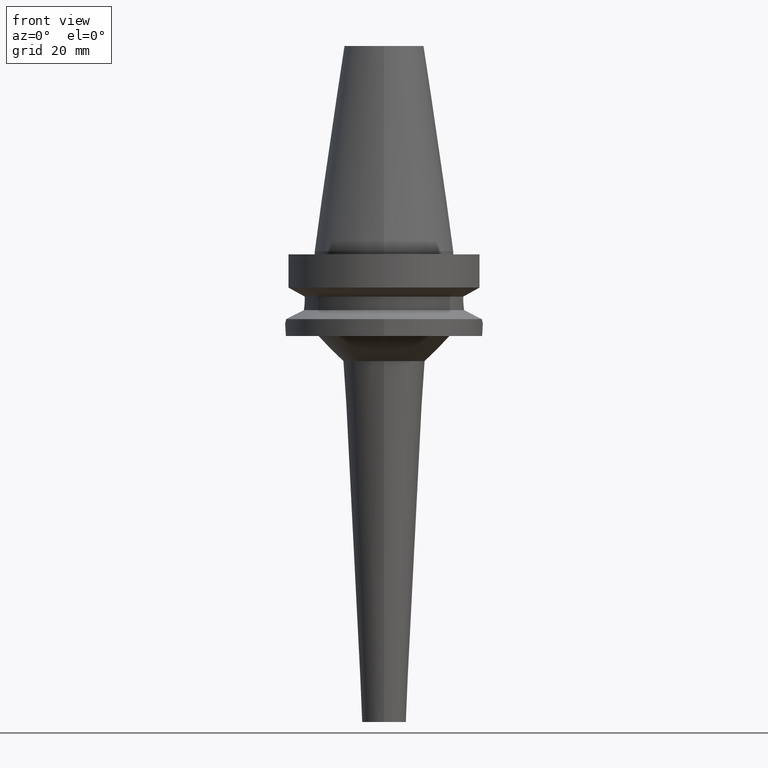
[diagram: clean part render]
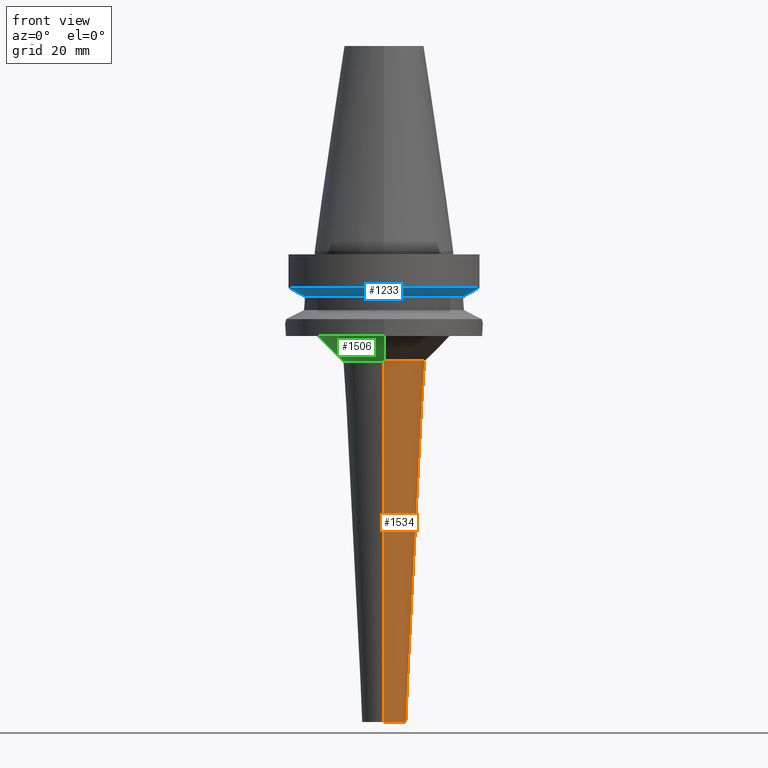
[diagram: same view with three faces highlighted in distinct colors, each labeled with its STEP entity id]
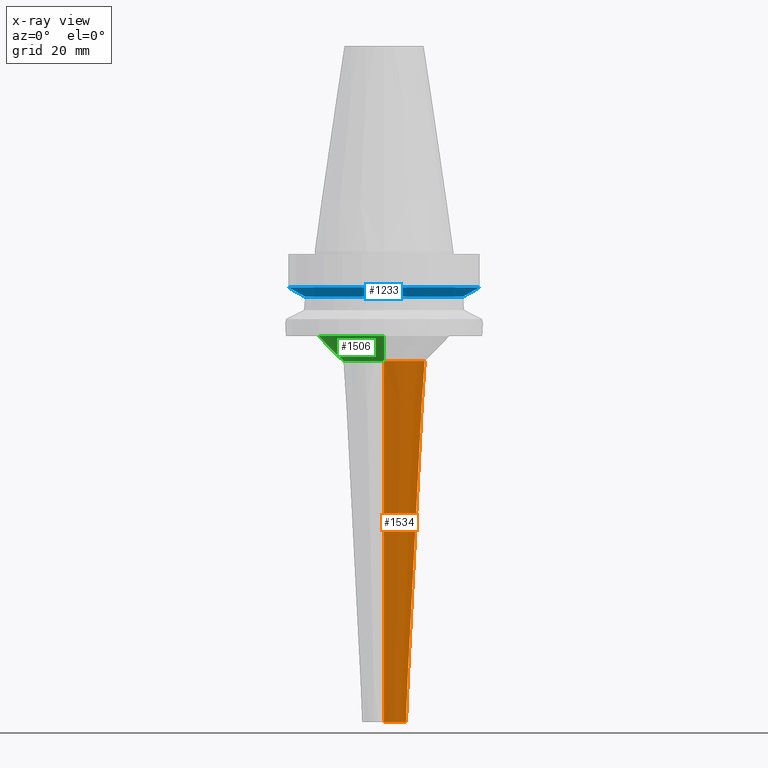
[diagram: x-ray of the same camera — body ghosted, the three highlighted faces saturated]
A machine part, front view with three faces highlighted in distinct colors.
The next image is the same camera in x-ray (body ghosted, the three faces saturated) — at least one of them is partly hidden behind the body in this view.
Their STEP definitions:

[orange] entity #1534 — the highlighted conical surface has half-angle 3 deg.
#676=DIRECTION('',(0.E0,-5.233595624295E-2,-9.986295347546E-1));
#677=VECTOR('',#676,1.151578197898E2);
#678=CARTESIAN_POINT('',(0.E0,1.302689461755E1,-3.5E1));
#679=LINE('',#678,#677);
#683=CARTESIAN_POINT('',(0.E0,0.E0,-3.5E1));
#684=DIRECTION('',(0.E0,0.E0,1.E0));
#685=DIRECTION('',(0.E0,-1.E0,0.E0));
#686=AXIS2_PLACEMENT_3D('',#683,#684,#685);
#691=DIRECTION('',(0.E0,5.233595624295E-2,-9.986295347546E-1));
#692=VECTOR('',#691,1.151578197898E2);
#693=CARTESIAN_POINT('',(0.E0,-1.302689461755E1,-3.5E1));
#694=LINE('',#693,#692);
#698=CARTESIAN_POINT('',(0.E0,0.E0,-1.5E2));
#699=DIRECTION('',(0.E0,0.E0,1.E0));
#700=DIRECTION('',(0.E0,-1.E0,0.E0));
#701=AXIS2_PLACEMENT_3D('',#698,#699,#700);
#952=CARTESIAN_POINT('',(0.E0,-6.999999999995E0,-1.5E2));
#953=CARTESIAN_POINT('',(0.E0,6.999999999995E0,-1.5E2));
#954=VERTEX_POINT('',#952);
#955=VERTEX_POINT('',#953);
#956=CARTESIAN_POINT('',(0.E0,1.302689461755E1,-3.5E1));
#957=VERTEX_POINT('',#956);
#958=CARTESIAN_POINT('',(0.E0,-1.302689461755E1,-3.5E1));
#959=VERTEX_POINT('',#958);
#1520=CARTESIAN_POINT('',(0.E0,0.E0,-9.25E1));
#1521=DIRECTION('',(0.E0,0.E0,1.E0));
#1522=DIRECTION('',(0.E0,1.E0,0.E0));
#1523=AXIS2_PLACEMENT_3D('',#1520,#1521,#1522);
#1524=CONICAL_SURFACE('',#1523,1.001344730877E1,3.E0);
#1526=ORIENTED_EDGE('',*,*,#1525,.T.);
#1528=ORIENTED_EDGE('',*,*,#1527,.F.);
#1530=ORIENTED_EDGE('',*,*,#1529,.F.);
#1531=ORIENTED_EDGE('',*,*,#1513,.T.);
#1532=EDGE_LOOP('',(#1526,#1528,#1530,#1531));
#1533=FACE_OUTER_BOUND('',#1532,.F.);
#687=CIRCLE('',#686,1.302689461754E1);
#702=CIRCLE('',#701,6.999999999995E0);
#1513=EDGE_CURVE('',#959,#957,#687,.T.);
#1525=EDGE_CURVE('',#957,#955,#679,.T.);
#1527=EDGE_CURVE('',#954,#955,#702,.T.);
#1529=EDGE_CURVE('',#959,#954,#694,.T.);
#1534=ADVANCED_FACE('',(#1533),#1524,.T.);

[blue] entity #1233 — the highlighted conical surface has half-angle 60 deg.
#207=CARTESIAN_POINT('',(-3.045402291358E1,-8.049999278196E0,
-1.156551215380E1));
#208=CARTESIAN_POINT('',(-2.987645774103E1,-8.049999278196E0,
-1.188789690512E1));
#209=CARTESIAN_POINT('',(-2.872091200535E1,-8.049999725650E0,
-1.253193852333E1));
#210=CARTESIAN_POINT('',(-2.698538664086E1,-8.050002042929E0,
-1.349404339964E1));
#211=CARTESIAN_POINT('',(-2.582730530245E1,-8.049995416065E0,
-1.413348340728E1));
#212=CARTESIAN_POINT('',(-2.524772413112E1,-8.049995416065E0,
-1.445229202585E1));
#251=CARTESIAN_POINT('',(0.E0,1.065333950388E-14,-1.156550565267E1));
#252=DIRECTION('',(0.E0,0.E0,1.E0));
#253=DIRECTION('',(-9.667943721520E-1,-2.555555555555E-1,0.E0));
#254=AXIS2_PLACEMENT_3D('',#251,#252,#253);
#259=CARTESIAN_POINT('',(0.E0,1.065333950388E-14,-1.156550565267E1));
#260=DIRECTION('',(0.E0,0.E0,1.E0));
#261=DIRECTION('',(0.E0,-1.E0,0.E0));
#262=AXIS2_PLACEMENT_3D('',#259,#260,#261);
#267=CARTESIAN_POINT('',(0.E0,1.065333950388E-14,-1.445225699861E1));
#268=DIRECTION('',(0.E0,0.E0,-1.E0));
#269=DIRECTION('',(9.527442516822E-1,-3.037735849057E-1,0.E0));
#270=AXIS2_PLACEMENT_3D('',#267,#268,#269);
#275=CARTESIAN_POINT('',(0.E0,1.065333950388E-14,-1.445225699861E1));
#276=DIRECTION('',(0.E0,0.E0,-1.E0));
#277=DIRECTION('',(0.E0,-1.E0,0.E0));
#278=AXIS2_PLACEMENT_3D('',#275,#276,#277);
#297=CARTESIAN_POINT('',(2.524772216353E1,-8.050001587143E0,-1.445224487144E1));
#298=CARTESIAN_POINT('',(2.582727361197E1,-8.050001587143E0,-1.413345267699E1));
#299=CARTESIAN_POINT('',(2.698547396648E1,-8.049999811802E0,-1.349419208993E1));
#300=CARTESIAN_POINT('',(2.872100165134E1,-8.049998277979E0,-1.253209187398E1));
#301=CARTESIAN_POINT('',(2.987642831141E1,-8.050004143513E0,-1.188786874928E1));
#302=CARTESIAN_POINT('',(3.045402162752E1,-8.050004143513E0,-1.156546832966E1));
#1003=CARTESIAN_POINT('',(-2.524772413112E1,-8.049995416065E0,
-1.445229202585E1));
#1004=VERTEX_POINT('',#1003);
#1005=CARTESIAN_POINT('',(2.524772266958E1,-8.05E0,-1.445225699861E1));
#1006=CARTESIAN_POINT('',(0.E0,-2.65E1,-1.445225699861E1));
#1007=VERTEX_POINT('',#1005);
#1008=VERTEX_POINT('',#1006);
#1019=CARTESIAN_POINT('',(-3.045402291358E1,-8.049999278196E0,
-1.156551215380E1));
#1020=VERTEX_POINT('',#1019);
#1046=CARTESIAN_POINT('',(0.E0,-3.15E1,-1.156550565267E1));
#1047=CARTESIAN_POINT('',(3.045402272279E1,-8.049999999999E0,
-1.156550565267E1));
#1048=VERTEX_POINT('',#1046);
#1049=VERTEX_POINT('',#1047);
#1217=CARTESIAN_POINT('',(0.E0,1.065333950388E-14,-1.300888132564E1));
#1218=DIRECTION('',(0.E0,0.E0,1.E0));
#1219=DIRECTION('',(0.E0,1.E0,0.E0));
#1220=AXIS2_PLACEMENT_3D('',#1217,#1218,#1219);
#1221=CONICAL_SURFACE('',#1220,2.9E1,6.E1);
#1222=ORIENTED_EDGE('',*,*,#1189,.F.);
#1224=ORIENTED_EDGE('',*,*,#1223,.T.);
#1226=ORIENTED_EDGE('',*,*,#1225,.T.);
#1228=ORIENTED_EDGE('',*,*,#1227,.F.);
#1229=ORIENTED_EDGE('',*,*,#1202,.T.);
#1230=ORIENTED_EDGE('',*,*,#1200,.T.);
#1231=EDGE_LOOP('',(#1222,#1224,#1226,#1228,#1229,#1230));
#1232=FACE_OUTER_BOUND('',#1231,.F.);
#213=B_SPLINE_CURVE_WITH_KNOTS('',3,(#207,#208,#209,#210,#211,#212),
.UNSPECIFIED.,.F.,.F.,(4,1,1,4),(0.E0,3.333333333333E-1,6.666666666667E-1,1.E0),
.UNSPECIFIED.);
#255=CIRCLE('',#254,3.15E1);
#263=CIRCLE('',#262,3.15E1);
#271=CIRCLE('',#270,2.65E1);
#279=CIRCLE('',#278,2.65E1);
#303=B_SPLINE_CURVE_WITH_KNOTS('',3,(#297,#298,#299,#300,#301,#302),
.UNSPECIFIED.,.F.,.F.,(4,1,1,4),(0.E0,3.333333333333E-1,6.666666666667E-1,1.E0),
.UNSPECIFIED.);
#1189=EDGE_CURVE('',#1020,#1004,#213,.T.);
#1200=EDGE_CURVE('',#1008,#1004,#279,.T.);
#1202=EDGE_CURVE('',#1007,#1008,#271,.T.);
#1223=EDGE_CURVE('',#1020,#1048,#255,.T.);
#1225=EDGE_CURVE('',#1048,#1049,#263,.T.);
#1227=EDGE_CURVE('',#1007,#1049,#303,.T.);
#1233=ADVANCED_FACE('',(#1232),#1221,.T.);

[green] entity #1506 — the highlighted conical surface has half-angle 45 deg.
#638=CARTESIAN_POINT('',(0.E0,0.E0,-2.7E1));
#639=DIRECTION('',(0.E0,0.E0,-1.E0));
#640=DIRECTION('',(0.E0,-1.E0,0.E0));
#641=AXIS2_PLACEMENT_3D('',#638,#639,#640);
#654=DIRECTION('',(0.E0,7.071067811867E-1,-7.071067811864E-1));
#655=VECTOR('',#654,1.131370849899E1);
#656=CARTESIAN_POINT('',(0.E0,-2.102689461755E1,-2.7E1));
#657=LINE('',#656,#655);
#661=CARTESIAN_POINT('',(0.E0,0.E0,-3.5E1));
#662=DIRECTION('',(0.E0,0.E0,-1.E0));
#663=DIRECTION('',(0.E0,-1.E0,0.E0));
#664=AXIS2_PLACEMENT_3D('',#661,#662,#663);
#669=DIRECTION('',(0.E0,-7.071067811867E-1,-7.071067811864E-1));
#670=VECTOR('',#669,1.131370849899E1);
#671=CARTESIAN_POINT('',(0.E0,2.102689461755E1,-2.7E1));
#672=LINE('',#671,#670);
#956=CARTESIAN_POINT('',(0.E0,1.302689461755E1,-3.5E1));
#957=VERTEX_POINT('',#956);
#958=CARTESIAN_POINT('',(0.E0,-1.302689461755E1,-3.5E1));
#959=VERTEX_POINT('',#958);
#960=CARTESIAN_POINT('',(0.E0,2.102689461755E1,-2.7E1));
#961=VERTEX_POINT('',#960);
#962=CARTESIAN_POINT('',(0.E0,-2.102689461755E1,-2.7E1));
#963=VERTEX_POINT('',#962);
#1492=CARTESIAN_POINT('',(0.E0,0.E0,-3.1E1));
#1493=DIRECTION('',(0.E0,0.E0,1.E0));
#1494=DIRECTION('',(0.E0,1.E0,0.E0));
#1495=AXIS2_PLACEMENT_3D('',#1492,#1493,#1494);
#1496=CONICAL_SURFACE('',#1495,1.702689461755E1,4.5E1);
#1498=ORIENTED_EDGE('',*,*,#1497,.F.);
#1499=ORIENTED_EDGE('',*,*,#1485,.F.);
#1501=ORIENTED_EDGE('',*,*,#1500,.T.);
#1503=ORIENTED_EDGE('',*,*,#1502,.T.);
#1504=EDGE_LOOP('',(#1498,#1499,#1501,#1503));
#1505=FACE_OUTER_BOUND('',#1504,.F.);
#642=CIRCLE('',#641,2.102689461755E1);
#665=CIRCLE('',#664,1.302689461755E1);
#1485=EDGE_CURVE('',#963,#961,#642,.T.);
#1497=EDGE_CURVE('',#961,#957,#672,.T.);
#1500=EDGE_CURVE('',#963,#959,#657,.T.);
#1502=EDGE_CURVE('',#959,#957,#665,.T.);
#1506=ADVANCED_FACE('',(#1505),#1496,.T.);